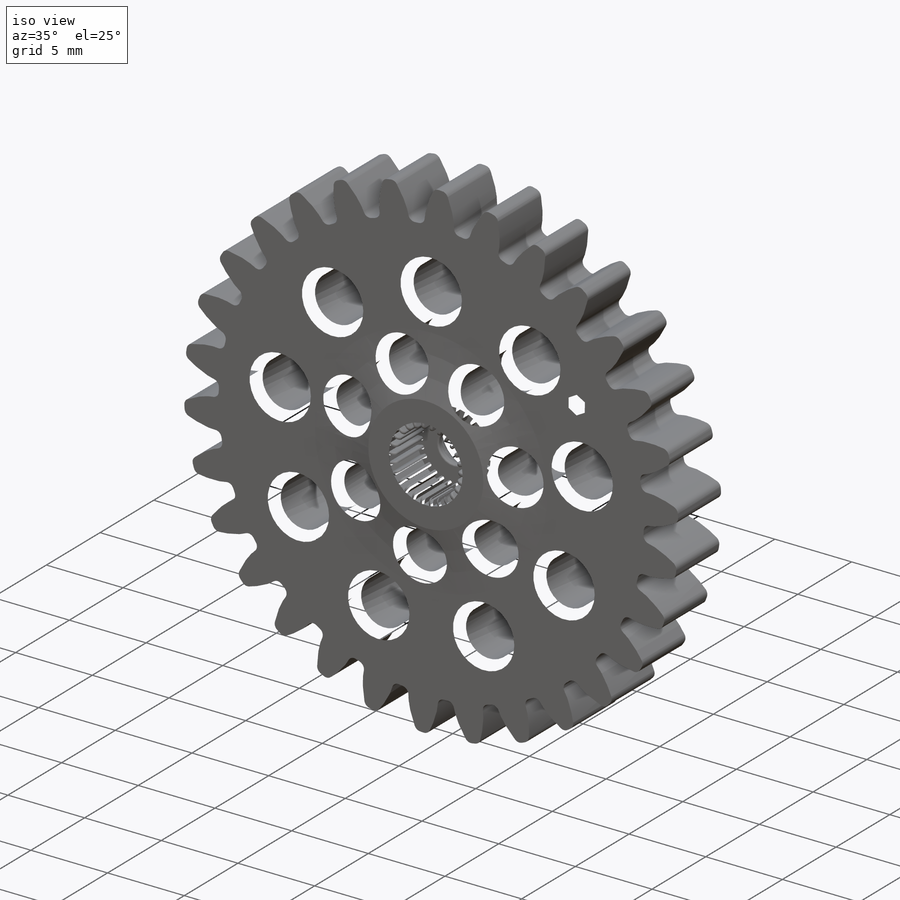
[diagram: iso view]
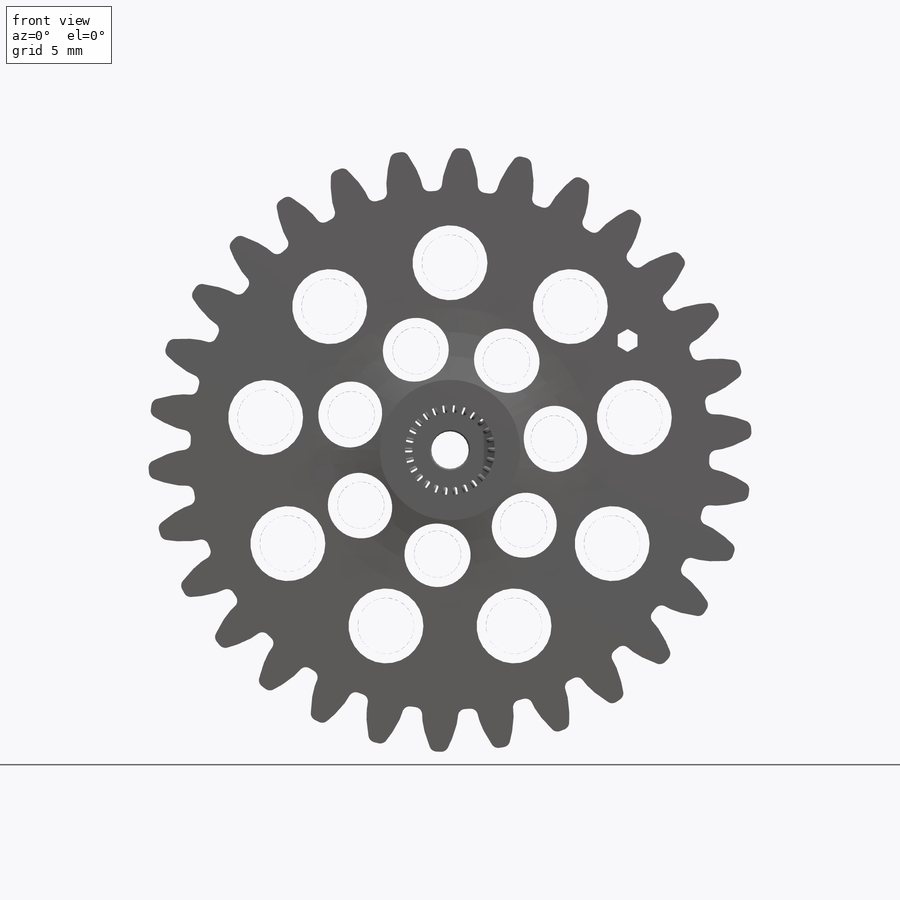
[diagram: front view]
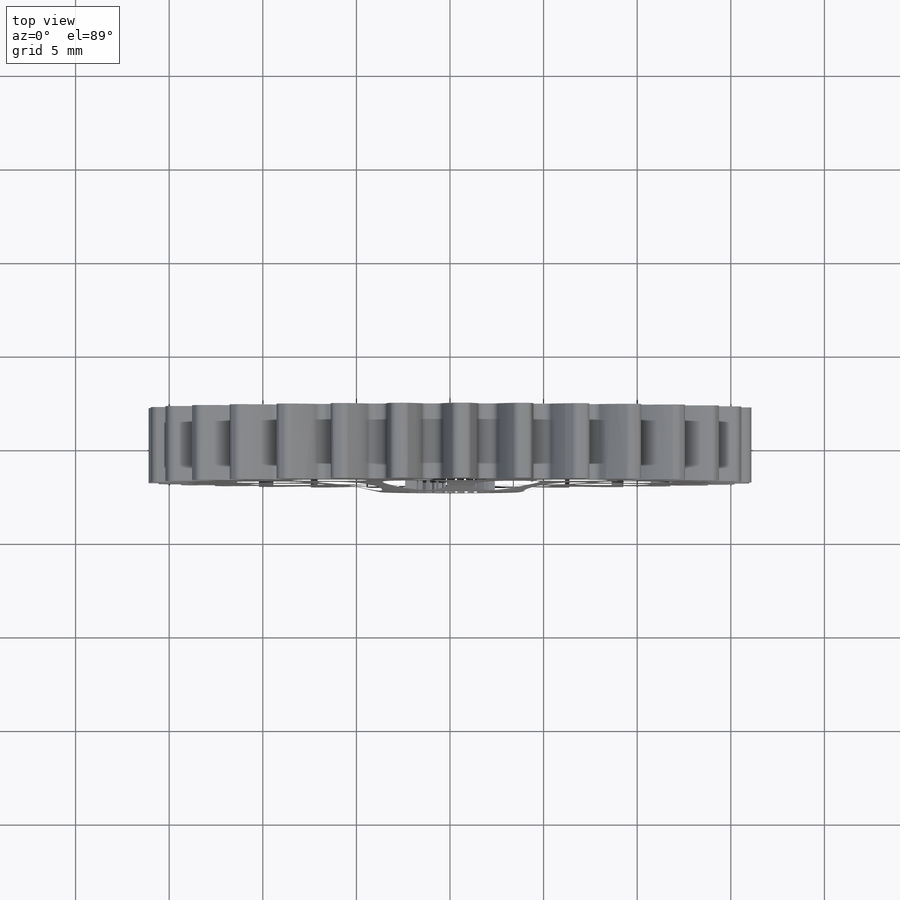
[diagram: top view]
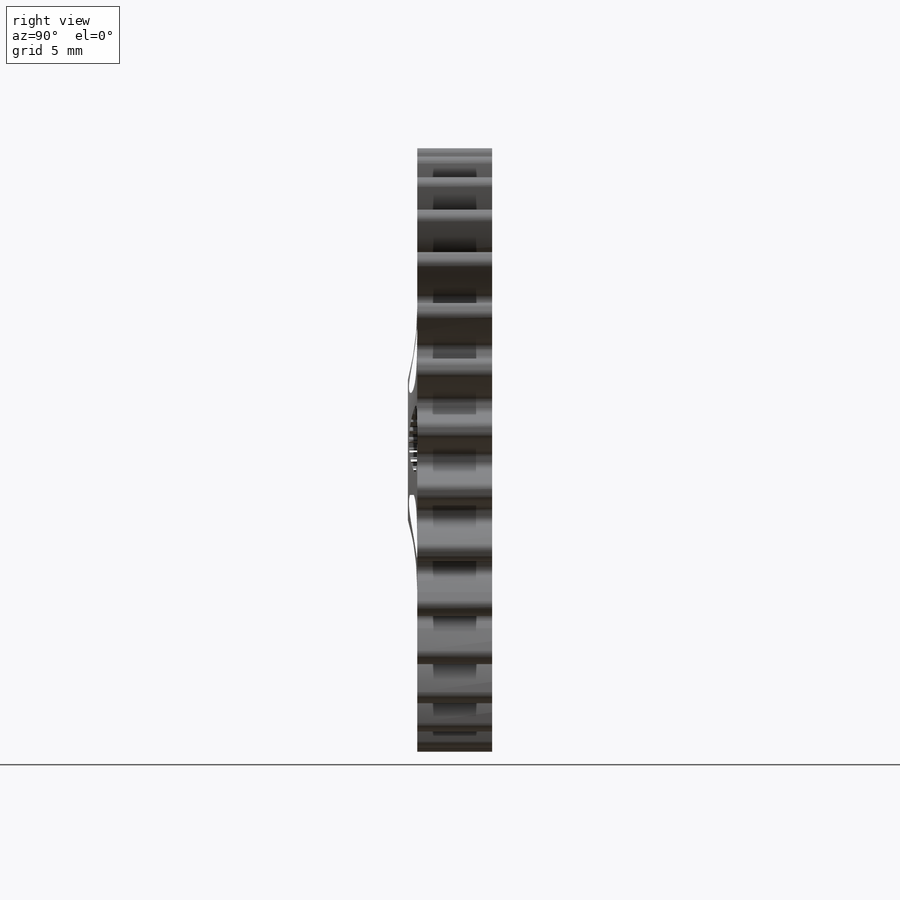
[diagram: right view]
SOLIDWORKS PART (.sldprt)
format: sldprt  version: not decoded by parser v0  size: 2,198,528 bytes
history: native  units: mm
features: fillet x15, sketch x11, cut_extrude x8, pattern_circular x4, plane x3, extrude x3, material x1 (+16 scaffold rows collapsed; 6 parser-record rows omitted)
feature tree (67):
  scaffold x16  (default folders/planes/origin — collapsed)
  material  "Material <nicht angegeben>"
  plane  "Ebene vorne"
  plane  "Ebene oben"
  plane  "Ebene rechts"
  sketch  "Scheibe"  dims[D1=~32.253968mm D2=~29.737546mm D3=~24.947606mm D4=~21.35515mm]
  extrude  "body"  Depth=4mm
  sketch  "Skizze2"  dims[c1.D1=~30.238095mm c1.D2=~28.414515mm c1.D3=~27.718254mm c1.D4=127.0mm c2.D4=~2.146042deg c2.D5=~126.667642mm c3.D5=~2.146042deg]
  cut_extrude  "zahnschnitt"  [1 undecoded]
  pattern_circular  "zähnemuster"  Count=30 Angle=12deg
  parser-record x6  (decoder bookkeeping rows leaked as tree rows — omitted from the tree; the rows remain in map.json)
  fillet  "Verrundung3"  Radius=0.4mm
  fillet  "Verrundung4"  Radius=0.4mm
  fillet  "Verrundung5"  Radius=0.4mm
  fillet  "Verrundung6"  Radius=0.4mm
  fillet  "Verrundung7"  Radius=0.4mm
  fillet  "Verrundung8"  Radius=0.4mm
  fillet  "Verrundung10"  Radius=0.4mm
  sketch  "Skizze3"  dims[D1=3.0mm]
  cut_extrude  "Schnitt-Linear austragen2"  [1 undecoded]
  pattern_circular  "Kreismuster3"  Count=9 Angle=40deg
  sketch  "Skizze5"  dims[D1=2.5mm]
  cut_extrude  "Schnitt-Linear austragen4"  [1 undecoded]
  pattern_circular  "Kreismuster6"  Count=7 Angle=51.428571deg
  sketch  "Auftrag unten"  dims[D1=7.5mm]
  extrude  "Auftrag"  Depth=0.5mm
  sketch  "LochSkizze"  dims[D1=4.8mm]
  cut_extrude  "Loch fuer Servoaufsatz"  Depth=2.6mm
  sketch  "Ankerschraube"  dims[D1=2.0mm]
  cut_extrude  "Schraube"  [1 undecoded]
  sketch  "gegenloch"  dims[D1=3.5mm]
  cut_extrude  "Schrauben gegenloch"  Depth=1.5mm
  sketch  "rippen grip"  dims[c1.D1=~0.295958mm c1.D2=~4.522698mm c2.D1=~0.157108mm c2.D2=~4.836856mm c3.D1=0.25mm]
  extrude  "grip rippen"  Depth=2.6mm
  pattern_circular  "grip_kreismuster"  Count=13 Angle=27.692308deg
  sketch  "Skizze11"  dims[D1=4.0mm]
  cut_extrude  "zentrumsloch"  Depth=2.6mm
  fillet  "Verrundung Auftrag"  Radius=15mm
  fillet  "gegenlochverrundung"  Radius=0.75mm
  fillet  "Verrundung12"  Radius=0.2mm
  fillet  "Verrundung13"  Radius=0.25mm
  fillet  "Verrundung14"  Radius=0.1mm
  fillet  "Verrundung15"  Radius=0.1mm
  fillet  "Verrundung16"  Radius=0.1mm
  fillet  "Verrundung17"  Radius=0.5mm
  sketch  "Skizze12"
  cut_extrude  "Schnitt-Linear austragen5"  Depth=10mm
decode coverage: 36 of 41 modeling features carry decoded parameters
note: ~ marks probable driven/reference dimensions
note: 4 parameter values undecoded
summary: no parameter record found for 4 features
note: suppression state not decoded; provenance and decode notes live in map.json
